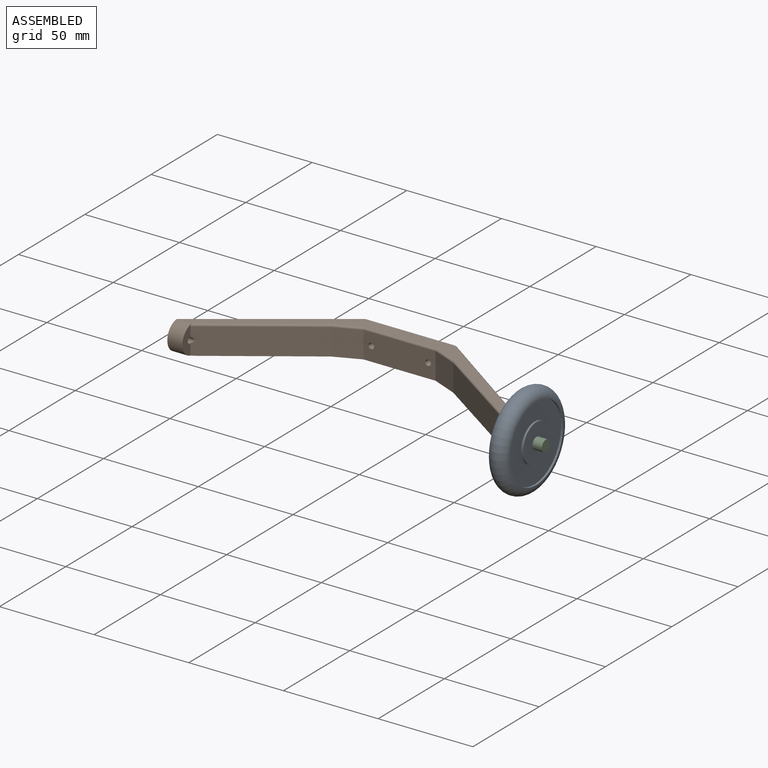
[diagram: assembled view]
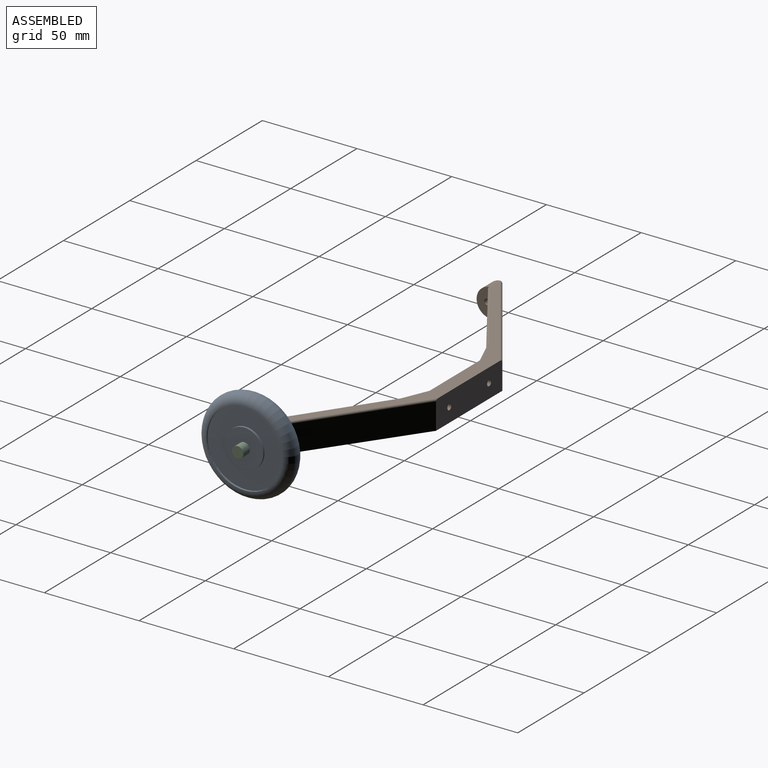
[diagram: assembled view, second angle]
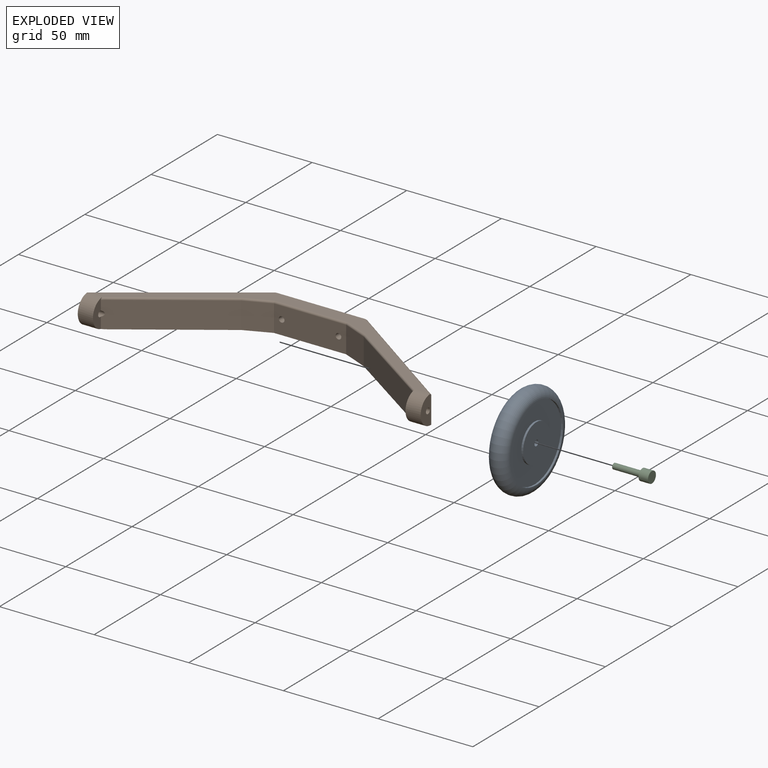
[diagram: exploded view]
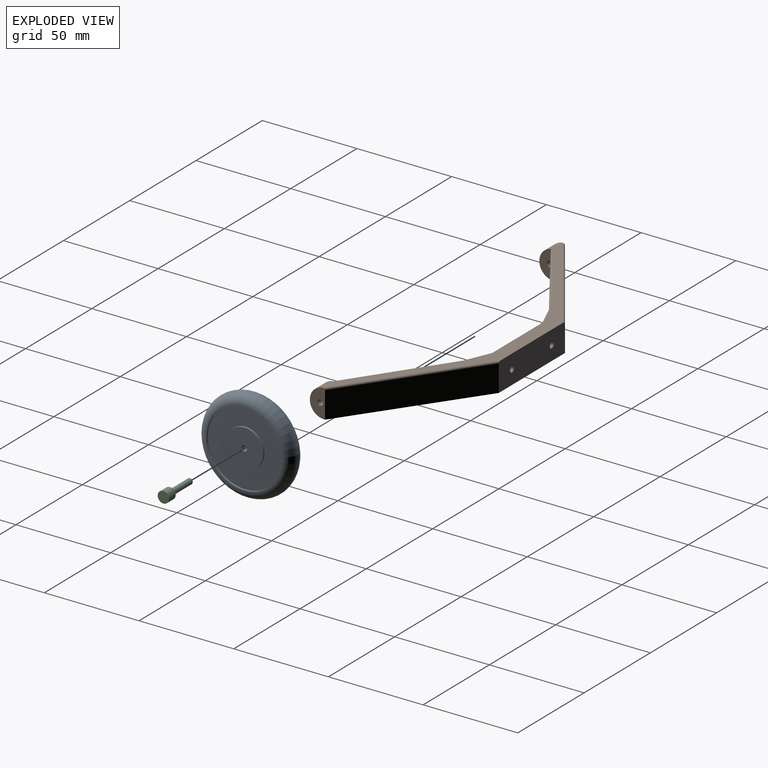
[diagram: exploded view, second angle]
ASSEMBLY  parts=3 mates=2
PART A: 10 faces, bbox 54.1x54.1x10 mm
  f0: cylinder r=10mm len=20mm, axis (0,0,-1), area 62.8mm2, adj f1,f4
  f1: plane 20x20mm, normal (0,0,1), area 307.1mm2, adj f0,f9
  f2: cylinder r=20mm len=40mm, axis (0,0,-1), area 125.7mm2, adj f5,f8
  f3: cylinder r=20mm len=40mm, axis (0,0,-1), area 125.7mm2, adj f4,f8
  f4: plane 40x40mm, normal (0,0,1), area 942.5mm2, adj f0,f3
  f5: plane 40x40mm, normal (0,0,-1), area 942.5mm2, adj f2,f7
  f6: plane 20x20mm, normal (0,0,-1), area 307.1mm2, adj f7,f9
  f7: cylinder r=10mm len=20mm, axis (0,0,-1), area 62.8mm2, adj f5,f6
  f8: torus R=20mm, axis (0,0,1), area 2288.1mm2, adj f2,f3
  f9: cylinder r=1.5mm len=10mm, axis (0,0,-1), area 94.2mm2, adj f1,f6
PART B: 29 faces, bbox 182.6x55.3x15.7 mm
  f0: plane 65.53x45.89mm, normal (0.57,0.82,0), area 1120mm2, adj f1,f9,f11,f19
  f1: plane 50.6x15.6mm, normal (0,1,0), area 735.1mm2, adj f0,f2,f10,f11,f12,f13,f18,f19
  f2: plane 65.53x45.89mm, normal (-0.57,0.82,0), area 1120mm2, adj f1,f3,f11,f18
  f3: plane 15.23x8.25mm, normal (-1,0,0), area 88.5mm2, adj f2,f11,f15,f17,f18
  f4: plane 15.08x7.4mm, normal (1,0,0), area 61.2mm2, adj f5,f15,f17,f22
  f5: plane 50.23x34.26mm, normal (0.56,-0.83,0), area 847.2mm2, adj f4,f11,f15,f17,f21,f22,f23
  f6: plane 38.11x14mm, normal (0,-1,0), area 519.4mm2, adj f11,f12,f13,f20,f21,f25
  f7: plane 50.23x34.26mm, normal (-0.56,-0.83,0), area 847.2mm2, adj f8,f11,f14,f16,f20,f27,f28
  f8: plane 15.08x7.4mm, normal (-1,0,0), area 61.2mm2, adj f7,f14,f16,f28
  f9: plane 15.23x8.25mm, normal (1,0,0), area 88.5mm2, adj f0,f11,f14,f16,f19
  f10: plane 179.01x46.39mm, normal (0,0,1), area 1066.4mm2, adj f1,f16,f17,f18,f19,f23,f24,f25
  f11: plane 181.06x46.39mm, normal (0,0,-1), area 1413mm2, adj f0,f1,f2,f3,f5,f6,f7,f9
  f12: cylinder r=1.5mm len=8mm, axis (0,-1,0), area 75.4mm2, adj f1,f6
  f13: cylinder r=1.5mm len=8mm, axis (0,-1,0), area 75.4mm2, adj f1,f6
  f14: cylinder r=1.5mm len=9.47mm, axis (1,0,0), area 78.9mm2, adj f7,f8,f9
  f15: cylinder r=1.5mm len=9.47mm, axis (1,0,0), area 78.9mm2, adj f3,f4,f5
  f16: cylinder r=7.5mm len=15mm, axis (-1,0,0), area 190mm2, adj f7,f8,f9,f10,f11,f19,f28
  f17: cylinder r=7.5mm len=15mm, axis (-1,0,0), area 190mm2, adj f3,f4,f5,f10,f11,f18,f22
  f18: cylinder r=1mm len=67.75mm, axis (0.82,0.57,0), area 127.2mm2, adj f1,f2,f3,f10,f17
  f19: cylinder r=1mm len=67.75mm, axis (0.82,-0.57,0), area 127.2mm2, adj f0,f1,f9,f10,f16
  f20: plane 14x13.26mm, normal (-0.39,-0.92,0), area 201.7mm2, adj f6,f7,f11,f26
  f21: plane 14x13.26mm, normal (0.39,-0.92,0), area 201.7mm2, adj f5,f6,f11,f24
  f22: bspline ~1.55x1.5mm, area 1.4mm2, adj f4,f5,f17,f23
  f23: cylinder r=1mm len=49.87mm, axis (-0.83,-0.56,0), area 93.7mm2, adj f5,f10,f22,f24
  f24: cylinder r=1mm len=13.93mm, axis (0.92,0.39,0), area 22.9mm2, adj f10,f21,f23,f25
  f25: cylinder r=1mm len=38.52mm, axis (-1,0,0), area 60.2mm2, adj f6,f10,f24,f26
  f26: cylinder r=1mm len=13.93mm, axis (0.92,-0.39,0), area 22.9mm2, adj f10,f20,f25,f27
  f27: cylinder r=1mm len=49.87mm, axis (-0.83,0.56,0), area 93.7mm2, adj f7,f10,f26,f28
  f28: bspline ~3.97x3.31mm, area 1.4mm2, adj f7,f8,f16,f27
PART C: 5 faces, bbox 6x6x20 mm
  f0: cylinder r=3mm len=6mm, axis (0,0,-1), area 94.2mm2, adj f1,f2
  f1: plane 6x6mm, normal (0,0,1), area 21.2mm2, adj f0,f3
  f2: plane 6x6mm, normal (0,0,-1), area 28.3mm2, adj f0
  f3: cylinder r=1.5mm len=15mm, axis (0,0,-1), area 141.4mm2, adj f1,f4
  f4: plane 3x3mm, normal (0,0,1), area 7.1mm2, adj f3
PLACE A rot(axis=(0.58,-0.58,-0.58),120deg) t=(73.96,-79.17,10.61)mm
PLACE B t=(-17.03,-30.78,3.11)mm fixed
PLACE C rot(axis=(-0.49,-0.73,0.49),108deg) t=(83.96,-79.17,10.61)mm
MATE revolute C.f0 <-> A.f0  axis (-1,0,0) through (78.96,-79.17,10.61)mm
MATE fastened A.f0 <-> B.f14  axis (-1,0,0) through (68.96,-79.17,10.61)mm
